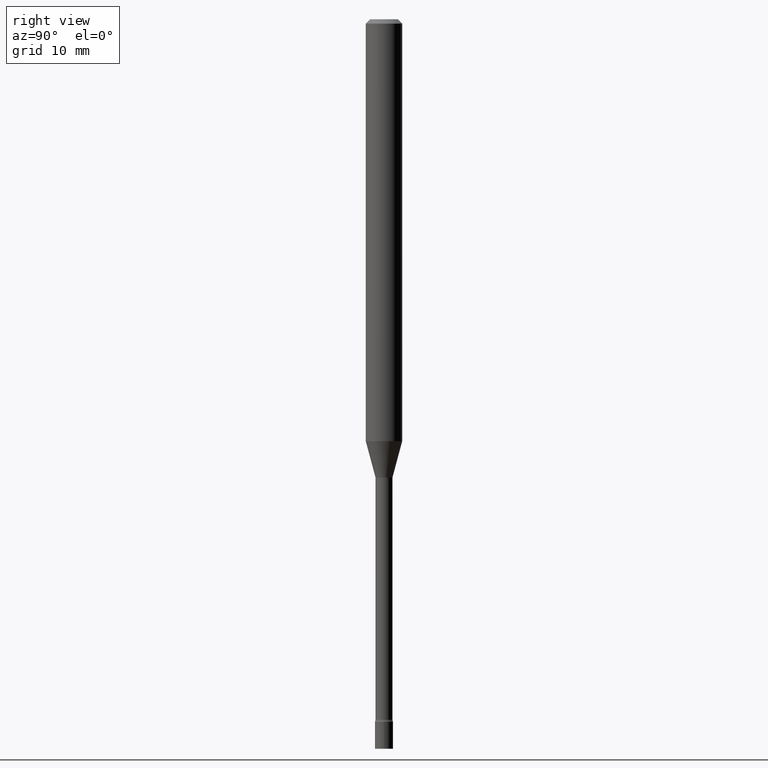
[diagram: clean part render]
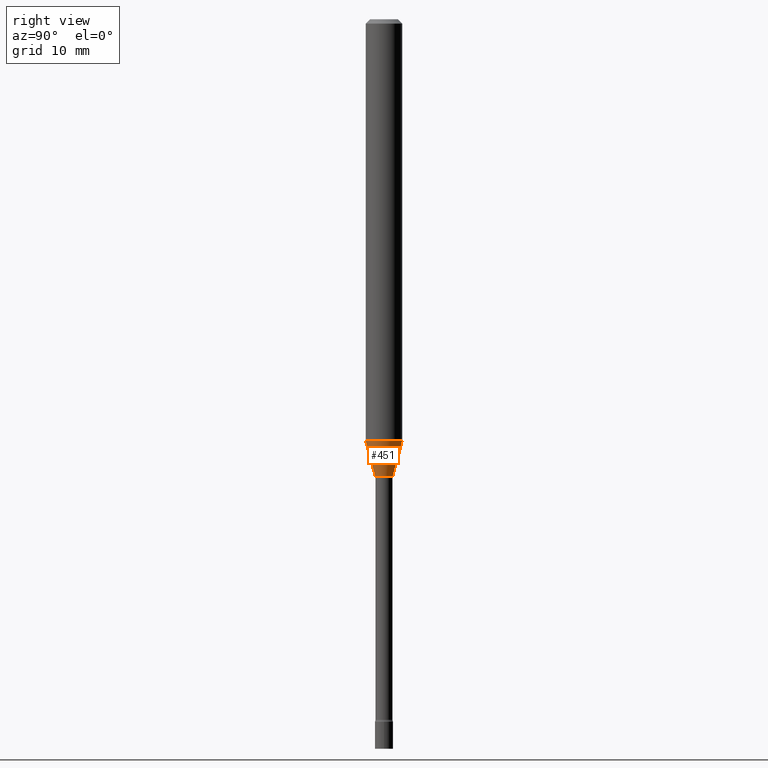
[diagram: same view with one face highlighted and labeled with its STEP entity id]
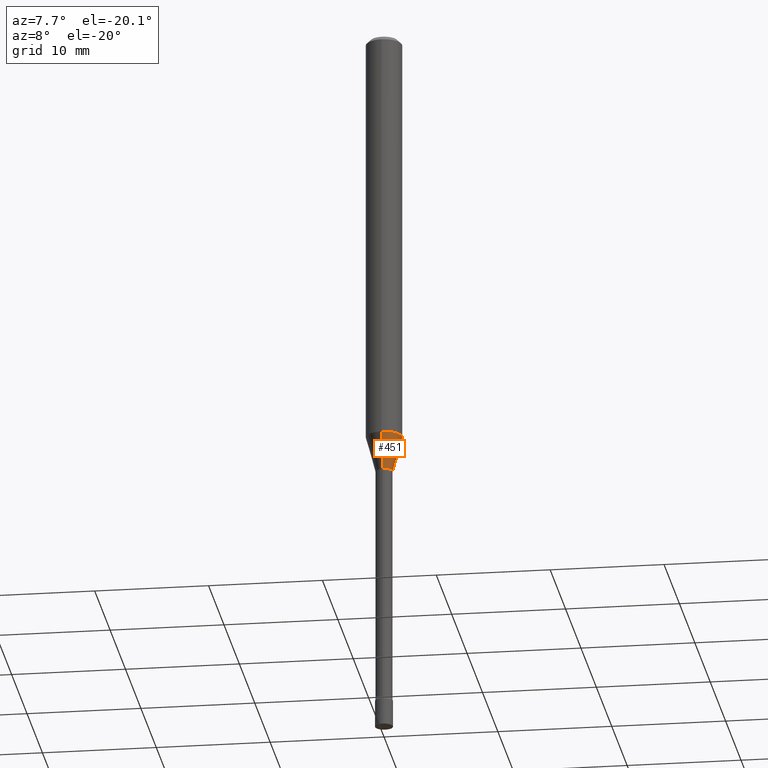
[diagram: same view with one face highlighted and labeled with its STEP entity id]
A machine part, right view. The second image highlights one B-rep face of the part: STEP entity #451.
A second angle (auxiliary view) of the same face is appended — the face is thin or edge-on in the first view.
In plain terms, the highlighted conical surface has half-angle 15 deg.
Its self-contained STEP definition (entity closure, byte-faithful):
#1 = CIRCLE ( 'NONE', #371, 0.02966111260566398414 ) ;
#11 = EDGE_CURVE ( 'NONE', #147, #474, #297, .T. ) ;
#17 = DIRECTION ( 'NONE',  ( -6.982962677686265922E-15, -1.000000000000000000, 0.000000000000000000 ) ) ;
#69 = ORIENTED_EDGE ( 'NONE', *, *, #317, .F. ) ;
#75 = DIRECTION ( 'NONE',  ( -6.982962677686265922E-15, -1.000000000000000000, 4.370956789862821150E-15 ) ) ;
#86 = CARTESIAN_POINT ( 'NONE',  ( 3.274220454076525799E-16, 0.02966111260565850935, -1.568092501787273108 ) ) ;
#121 = CARTESIAN_POINT ( 'NONE',  ( 4.440892098500977205E-16, 0.06249999999999492073, -1.445536105567578389 ) ) ;
#134 = FACE_OUTER_BOUND ( 'NONE', #183, .T. ) ;
#147 = VERTEX_POINT ( 'NONE', #482 ) ;
#148 = EDGE_CURVE ( 'NONE', #504, #366, #1, .T. ) ;
#165 = LINE ( 'NONE', #415, #332 ) ;
#173 = CARTESIAN_POINT ( 'NONE',  ( -2.071224423039628932E-16, -0.02966111260566946239, -1.568092501787273108 ) ) ;
#183 = EDGE_LOOP ( 'NONE', ( #423, #316, #259, #69 ) ) ;
#201 = DIRECTION ( 'NONE',  ( 1.839019923739598738E-15, 0.2588190451025247363, 0.9659258262890673130 ) ) ;
#206 = EDGE_CURVE ( 'NONE', #366, #474, #441, .T. ) ;
#238 = DIRECTION ( 'NONE',  ( -6.982962677686265922E-15, -1.000000000000000000, 0.000000000000000000 ) ) ;
#259 = ORIENTED_EDGE ( 'NONE', *, *, #11, .F. ) ;
#283 = CARTESIAN_POINT ( 'NONE',  ( 3.834696533246742775E-29, -5.475001172584028090E-15, -1.568092501787273108 ) ) ;
#294 = CARTESIAN_POINT ( 'NONE',  ( 3.834696533246742775E-29, -5.475001172584028090E-15, -1.568092501787273108 ) ) ;
#297 = CIRCLE ( 'NONE', #469, 0.06250000000000000000 ) ;
#316 = ORIENTED_EDGE ( 'NONE', *, *, #206, .T. ) ;
#317 = EDGE_CURVE ( 'NONE', #504, #147, #165, .T. ) ;
#327 = DIRECTION ( 'NONE',  ( -2.445453013056340806E-29, 3.491503955502470193E-15, 1.000000000000000000 ) ) ;
#332 = VECTOR ( 'NONE', #457, 39.37007874015748854 ) ;
#366 = VERTEX_POINT ( 'NONE', #86 ) ;
#371 = AXIS2_PLACEMENT_3D ( 'NONE', #283, #439, #238 ) ;
#399 = CARTESIAN_POINT ( 'NONE',  ( 3.534990624841963058E-29, -5.047095030410835227E-15, -1.445536105567578167 ) ) ;
#414 = VECTOR ( 'NONE', #201, 39.37007874015748854 ) ;
#415 = CARTESIAN_POINT ( 'NONE',  ( -2.071224423039628932E-16, -0.02966111260566946239, -1.568092501787273108 ) ) ;
#422 = CONICAL_SURFACE ( 'NONE', #491, 0.02966111260566398414, 0.2617993877991500740 ) ;
#423 = ORIENTED_EDGE ( 'NONE', *, *, #148, .T. ) ;
#439 = DIRECTION ( 'NONE',  ( -2.445453013056340806E-29, 3.491503955502470193E-15, 1.000000000000000000 ) ) ;
#441 = LINE ( 'NONE', #447, #414 ) ;
#447 = CARTESIAN_POINT ( 'NONE',  ( 2.107548809652071189E-16, 0.02966111260565850935, -1.568092501787273108 ) ) ;
#451 = ADVANCED_FACE ( 'NONE', ( #134 ), #422, .T. ) ;
#453 = DIRECTION ( 'NONE',  ( -2.445453013056340806E-29, 3.491503955502470193E-15, 1.000000000000000000 ) ) ;
#457 = DIRECTION ( 'NONE',  ( -1.807323732225328562E-15, -0.2588190451025179639, 0.9659258262890690894 ) ) ;
#469 = AXIS2_PLACEMENT_3D ( 'NONE', #399, #327, #75 ) ;
#474 = VERTEX_POINT ( 'NONE', #121 ) ;
#482 = CARTESIAN_POINT ( 'NONE',  ( -4.364351673553564172E-16, -0.06250000000000507927, -1.445536105567577945 ) ) ;
#491 = AXIS2_PLACEMENT_3D ( 'NONE', #294, #453, #17 ) ;
#504 = VERTEX_POINT ( 'NONE', #173 ) ;